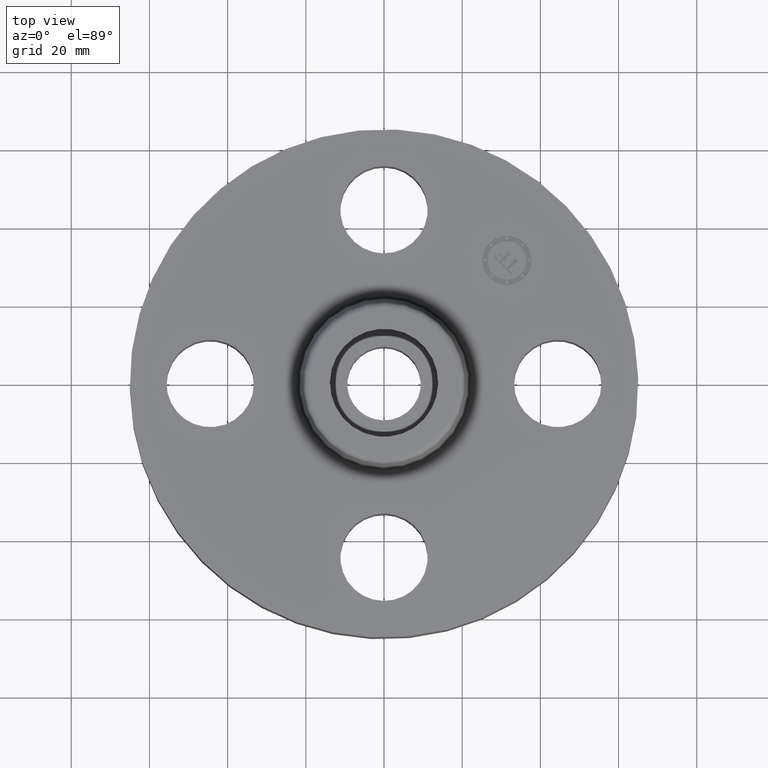
[diagram: clean part render]
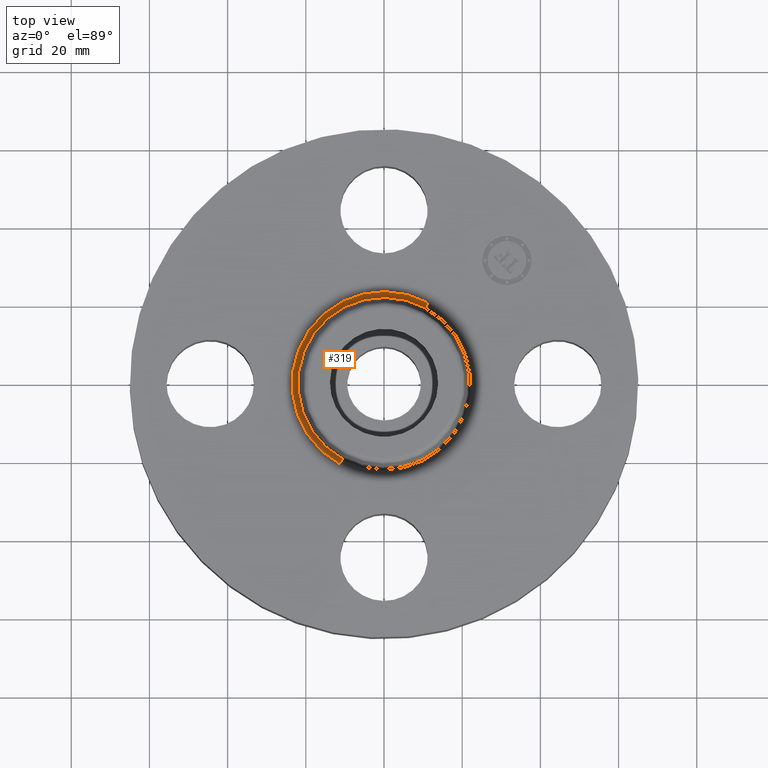
[diagram: same view with one face highlighted and labeled with its STEP entity id]
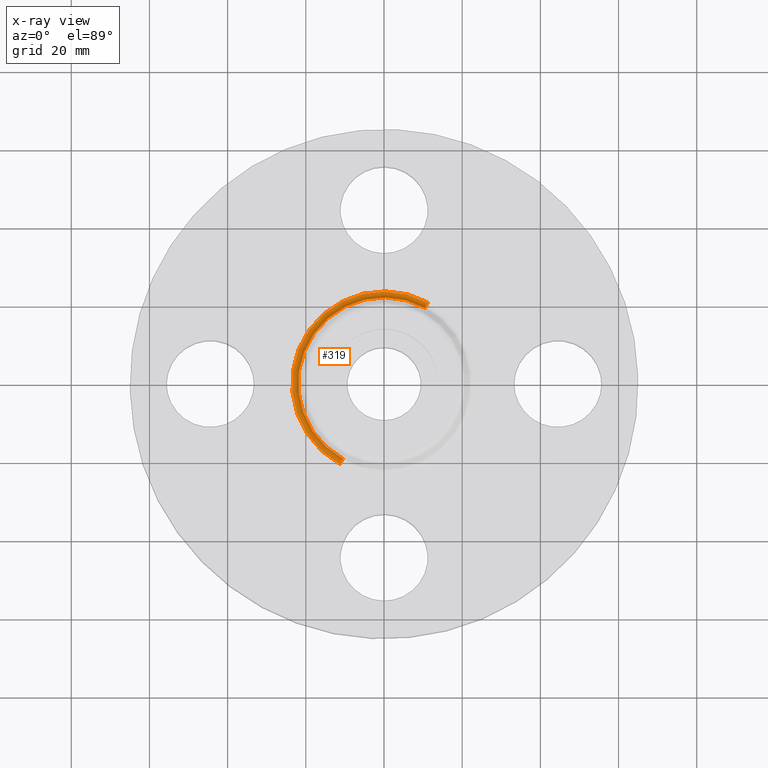
[diagram: x-ray of the same camera — body ghosted, the highlighted face saturated]
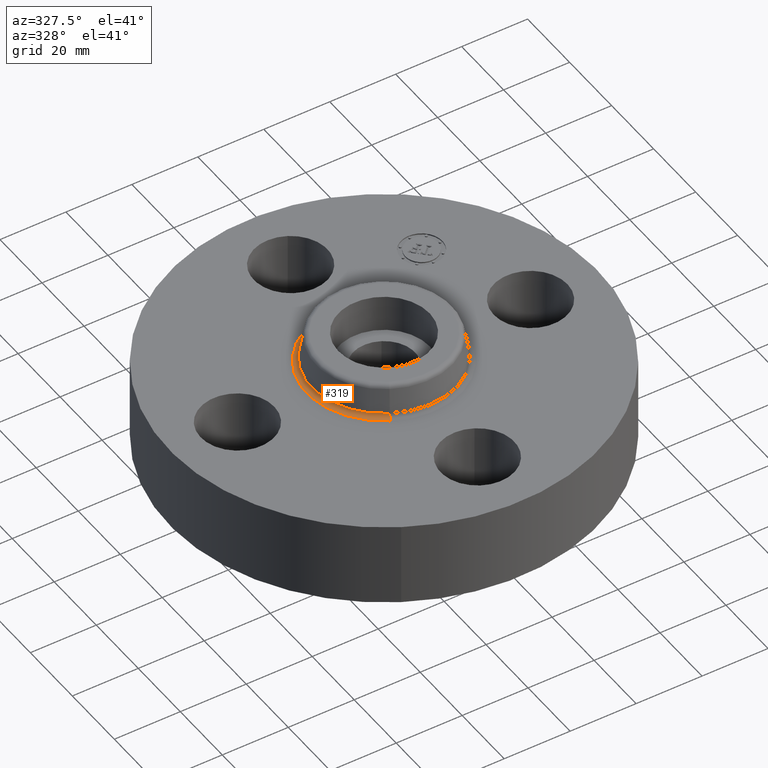
[diagram: same view with one face highlighted and labeled with its STEP entity id]
A machine part, top view. The second image highlights one B-rep face of the part: STEP entity #319.
The next image is the same camera in x-ray: the body ghosted, the highlighted face saturated — about 0% of this face is hidden behind the body in this view.
A second angle (auxiliary view) of the same face is appended — the face is thin or edge-on in the first view.
In plain terms, the highlighted toroidal blend (fillet) surface has major radius 23.5038 mm and minor (blend) radius 1.524 mm.
Its self-contained STEP definition (entity closure, byte-faithful):
#266=AXIS2_PLACEMENT_3D('Torus Axis2P3D',#263,#264,#265) ;
#279=AXIS2_PLACEMENT_3D('Circle Axis2P3D',#277,#278,$) ;
#293=AXIS2_PLACEMENT_3D('Circle Axis2P3D',#291,#292,$) ;
#305=AXIS2_PLACEMENT_3D('Circle Axis2P3D',#303,#304,$) ;
#310=AXIS2_PLACEMENT_3D('Circle Axis2P3D',#308,#309,$) ;
#263=CARTESIAN_POINT('Axis2P3D Location',(0.,0.,1.06)) ;
#272=CARTESIAN_POINT('Vertex',(0.443634493838,0.812067493898,1.)) ;
#274=CARTESIAN_POINT('Vertex',(-0.443634493838,-0.812067493898,1.)) ;
#277=CARTESIAN_POINT('Axis2P3D Location',(0.443634493838,0.812067493898,1.06)) ;
#281=CARTESIAN_POINT('Vertex',(0.415305974593,0.760212487246,1.04958110934)) ;
#288=CARTESIAN_POINT('Vertex',(-0.415305974593,-0.760212487246,1.04958110934)) ;
#291=CARTESIAN_POINT('Axis2P3D Location',(-0.443634493838,-0.812067493898,1.06)) ;
#303=CARTESIAN_POINT('Axis2P3D Location',(0.,0.,1.)) ;
#308=CARTESIAN_POINT('Axis2P3D Location',(0.,0.,1.04958110934)) ;
#264=DIRECTION('Axis2P3D Direction',(0.,0.,-0.0393700787402)) ;
#265=DIRECTION('Axis2P3D XDirection',(-0.0188750212049,-0.0345504945626,0.)) ;
#278=DIRECTION('Axis2P3D Direction',(-0.0345504945626,0.0188750212049,0.)) ;
#292=DIRECTION('Axis2P3D Direction',(0.0345504945626,-0.0188750212049,0.)) ;
#304=DIRECTION('Axis2P3D Direction',(0.,0.,-0.0393700787402)) ;
#309=DIRECTION('Axis2P3D Direction',(0.,0.,-0.0393700787402)) ;
#314=ORIENTED_EDGE('',*,*,#307,.F.) ;
#315=ORIENTED_EDGE('',*,*,#295,.T.) ;
#316=ORIENTED_EDGE('',*,*,#312,.T.) ;
#317=ORIENTED_EDGE('',*,*,#283,.F.) ;
#319=ADVANCED_FACE('PartBody',(#318),#267,.F.) ;
#280=CIRCLE('generated circle',#279,0.0600000000002) ;
#294=CIRCLE('generated circle',#293,0.0600000000002) ;
#306=CIRCLE('generated circle',#305,0.925345977874) ;
#311=CIRCLE('generated circle',#310,0.866257512693) ;
#267=TOROIDAL_SURFACE('homeo Torus',#266,0.925345977874,0.0600000000002) ;
#283=EDGE_CURVE('',#273,#282,#280,.T.) ;
#295=EDGE_CURVE('',#275,#289,#294,.T.) ;
#307=EDGE_CURVE('',#275,#273,#306,.T.) ;
#312=EDGE_CURVE('',#289,#282,#311,.T.) ;
#313=EDGE_LOOP('',(#314,#315,#316,#317)) ;
#318=FACE_OUTER_BOUND('',#313,.T.) ;
#273=VERTEX_POINT('',#272) ;
#275=VERTEX_POINT('',#274) ;
#282=VERTEX_POINT('',#281) ;
#289=VERTEX_POINT('',#288) ;